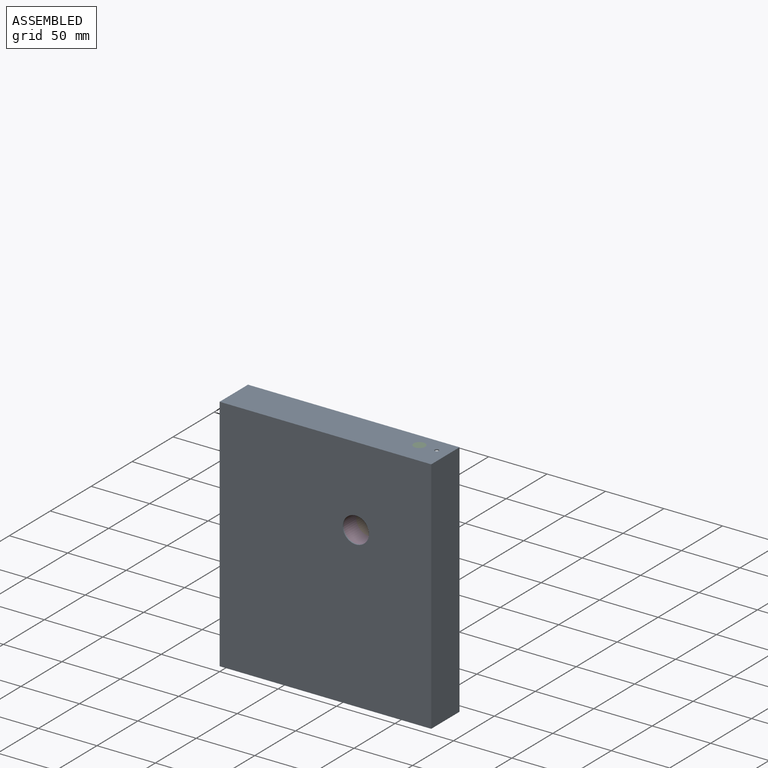
[diagram: assembled view]
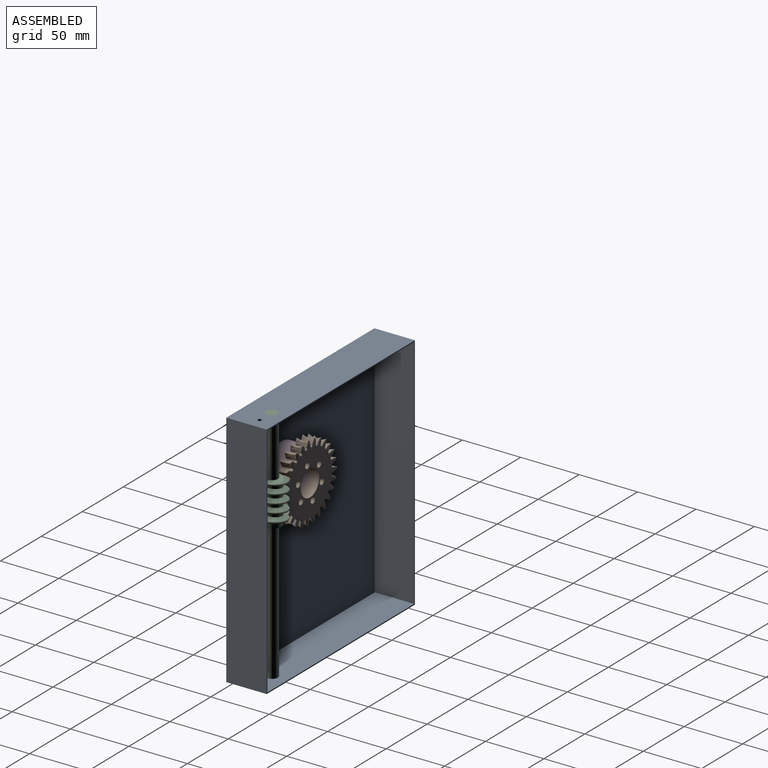
[diagram: assembled view, second angle]
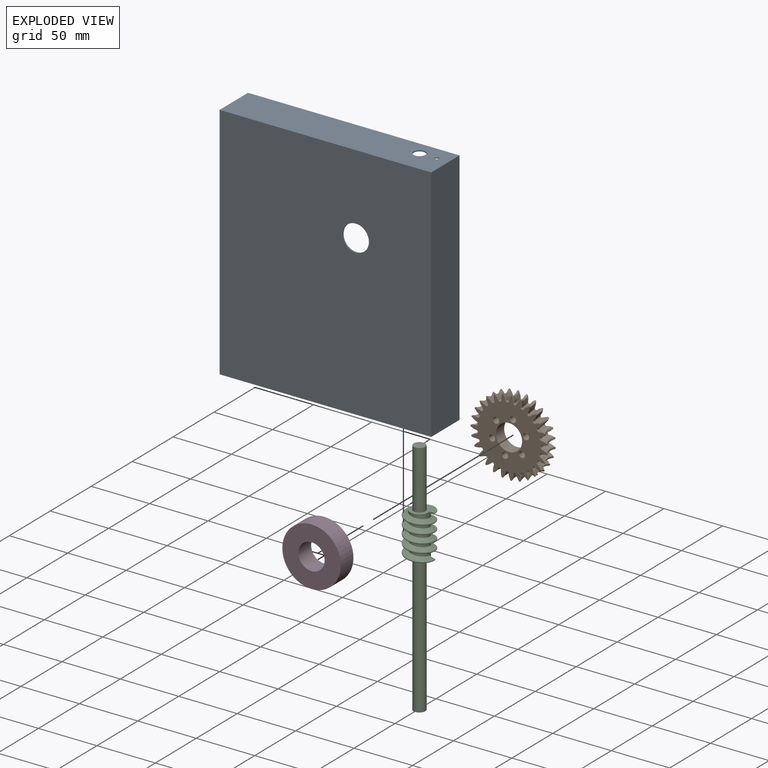
[diagram: exploded view]
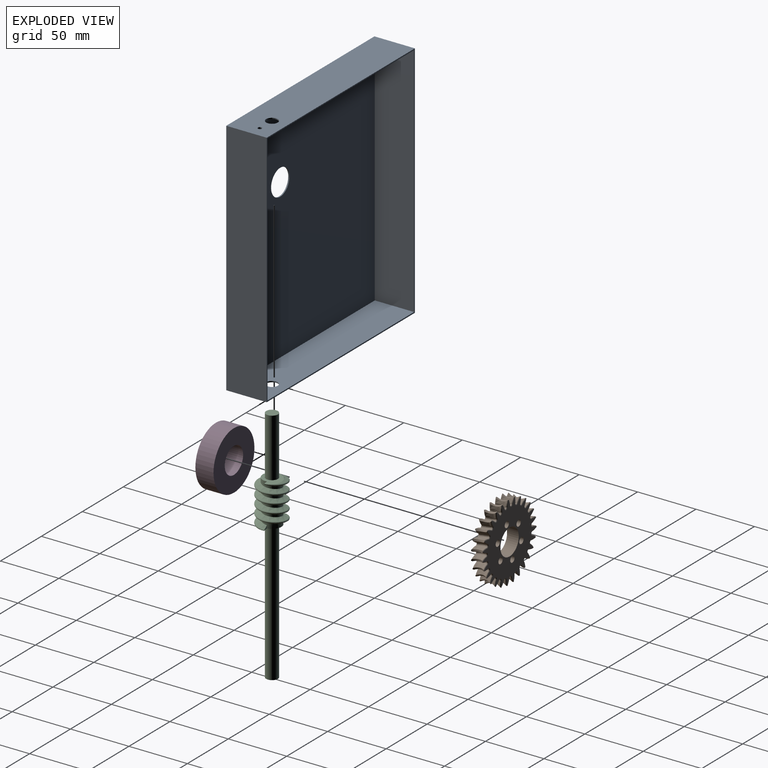
[diagram: exploded view, second angle]
ASSEMBLY  parts=4 mates=3
PART A: 15 faces, bbox 181x34.6x204.5 mm
  f0: cylinder r=11.2mm len=22.4mm, axis (0,1,0), area 70.4mm2, adj f1,f2
  f1: plane 204.5x181mm, normal (0,-1,0), area 36620.4mm2, adj f0,f7,f8,f9,f10
  f2: plane 202.5x179mm, normal (0,1,0), area 35853.4mm2, adj f0,f3,f4,f5,f6
  f3: plane 202.5x33.6mm, normal (1,0,0), area 6804mm2, adj f2,f4,f6,f11
  f4: plane 179x33.6mm, normal (0,0,1), area 5935.9mm2, adj f2,f3,f5,f11,f13
  f5: plane 202.5x33.6mm, normal (-1,0,0), area 6804mm2, adj f2,f4,f6,f11
  f6: plane 179x33.6mm, normal (0,0,-1), area 5927mm2, adj f2,f3,f5,f11,f12,f14
  f7: plane 181x34.6mm, normal (0,0,-1), area 6184.1mm2, adj f1,f8,f10,f11,f13
  f8: plane 204.5x34.6mm, normal (1,0,0), area 7075.7mm2, adj f1,f7,f9,f11
  f9: plane 181x34.6mm, normal (0,0,1), area 6175.2mm2, adj f1,f8,f10,f11,f12,f14
  f10: plane 204.5x34.6mm, normal (-1,0,0), area 7075.7mm2, adj f1,f7,f9,f11
  f11: plane 204.5x181mm, normal (0,1,0), area 767mm2, adj f3,f4,f5,f6,f7,f8,f9,f10
  f12: cylinder r=5mm len=10mm, axis (0,0,-1), area 31.4mm2, adj f6,f9
  f13: cylinder r=5mm len=10mm, axis (0,0,-1), area 31.4mm2, adj f4,f7
  f14: cylinder r=1.68mm len=3.35mm, axis (0,0,-1), area 10.5mm2, adj f6,f9
PART B: 387 faces, bbox 71x23.7x71.1 mm
  f0: torus R=39.39mm, axis (0,1,0), area 17mm2, adj f38,f39,f167,f168,f277,f278,f379,f381
  f1: torus R=39.39mm, axis (0,1,0), area 17mm2, adj f161,f162,f169,f170,f270,f272,f384,f386
  f2: torus R=39.39mm, axis (0,1,0), area 17mm2, adj f156,f157,f163,f164,f262,f264,f376,f378
  f3: torus R=39.39mm, axis (0,1,0), area 17mm2, adj f151,f152,f158,f159,f254,f256,f368,f370
  f4: torus R=39.39mm, axis (0,1,0), area 17mm2, adj f146,f147,f153,f154,f246,f248,f360,f362
  f5: torus R=39.39mm, axis (0,1,0), area 17mm2, adj f141,f142,f148,f149,f238,f240,f352,f354
  f6: torus R=39.39mm, axis (0,1,0), area 17mm2, adj f136,f137,f143,f144,f230,f232,f344,f346
  f7: torus R=39.39mm, axis (0,1,0), area 17mm2, adj f131,f132,f138,f139,f222,f224,f336,f338
  f8: torus R=39.39mm, axis (0,1,0), area 17mm2, adj f126,f127,f133,f134,f214,f216,f328,f330
  f9: torus R=39.39mm, axis (0,1,0), area 17mm2, adj f121,f122,f128,f129,f206,f208,f320,f322
  f10: torus R=39.39mm, axis (0,1,0), area 17mm2, adj f116,f117,f123,f124,f198,f200,f312,f314
  f11: torus R=39.39mm, axis (0,1,0), area 17mm2, adj f111,f112,f118,f119,f190,f192,f304,f306
  f12: torus R=39.39mm, axis (0,1,0), area 17mm2, adj f106,f107,f113,f114,f182,f184,f296,f298
  f13: torus R=39.39mm, axis (0,1,0), area 17mm2, adj f101,f102,f108,f109,f174,f176,f288,f290
  f14: torus R=39.39mm, axis (0,1,0), area 17mm2, adj f96,f97,f103,f104,f173,f175,f280,f282
  f15: torus R=39.39mm, axis (0,1,0), area 17mm2, adj f91,f92,f98,f99,f181,f183,f283,f285
  f16: torus R=39.39mm, axis (0,1,0), area 17mm2, adj f86,f87,f93,f94,f189,f191,f291,f293
  f17: torus R=39.39mm, axis (0,1,0), area 17mm2, adj f81,f82,f88,f89,f197,f199,f299,f301
  f18: torus R=39.39mm, axis (0,1,0), area 17mm2, adj f76,f77,f83,f84,f205,f207,f307,f309
  f19: torus R=39.39mm, axis (0,1,0), area 17mm2, adj f71,f72,f78,f79,f213,f215,f315,f317
  f20: torus R=39.39mm, axis (0,1,0), area 17mm2, adj f66,f67,f73,f74,f221,f223,f323,f325
  f21: torus R=39.39mm, axis (0,1,0), area 17mm2, adj f61,f62,f68,f69,f229,f231,f331,f333
  f22: torus R=39.39mm, axis (0,1,0), area 17mm2, adj f56,f57,f63,f64,f237,f239,f339,f341
  f23: torus R=39.39mm, axis (0,1,0), area 17mm2, adj f51,f52,f58,f59,f245,f247,f347,f349
  f24: torus R=39.39mm, axis (0,1,0), area 17mm2, adj f46,f47,f53,f54,f253,f255,f355,f357
  f25: torus R=39.39mm, axis (0,1,0), area 17mm2, adj f41,f42,f48,f49,f261,f263,f363,f365
  f26: plane 65.7x65.65mm, normal (0,1,0), area 2068.9mm2, adj f27,f29,f30,f31,f32,f33,f34,f279
  f27: cylinder r=11.2mm len=22.4mm, axis (0,-1,0), area 703.7mm2, adj f26,f28
  f28: plane 65.7x65.65mm, normal (0,-1,0), area 2068.9mm2, adj f27,f29,f30,f31,f32,f33,f34,f171
  f29: cylinder r=2.6mm len=10mm, axis (0,-1,0), area 163.4mm2, adj f26,f28
  f30: cylinder r=2.6mm len=10mm, axis (0,-1,0), area 163.4mm2, adj f26,f28
  f31: cylinder r=2.6mm len=10mm, axis (0,-1,0), area 163.4mm2, adj f26,f28
  f32: cylinder r=2.6mm len=10mm, axis (0,-1,0), area 163.4mm2, adj f26,f28
  f33: cylinder r=2.6mm len=10mm, axis (0,-1,0), area 163.4mm2, adj f26,f28
  f34: cylinder r=2.6mm len=10mm, axis (0,-1,0), area 163.4mm2, adj f26,f28
  f35: torus R=39.39mm, axis (0,1,0), area 17mm2, adj f36,f37,f43,f44,f269,f271,f371,f373
  f36: bspline ~20.48x7.56mm, area 36.8mm2, adj f35,f37,f40,f273,f373
  f37: bspline ~14.08x4.39mm, area 0.2mm2, adj f35,f36,f271
  f38: bspline ~7.04x3.91mm, area 0.2mm2, adj f0,f39,f379
  f39: bspline ~20.48x8.33mm, area 36.8mm2, adj f0,f38,f40,f277,f377
  f40: bspline ~23.71x8.45mm, area 32.1mm2, adj f36,f39,f275,f375
  f41: bspline ~20.48x6.95mm, area 36.8mm2, adj f25,f42,f45,f265,f365
  f42: bspline ~14.08x4.41mm, area 0.2mm2, adj f25,f41,f263
  f43: bspline ~7.04x3.48mm, area 0.2mm2, adj f35,f44,f371
  f44: bspline ~20.48x8.44mm, area 36.8mm2, adj f35,f43,f45,f269,f369
  f45: bspline ~23.71x8.67mm, area 32.1mm2, adj f41,f44,f267,f367
  f46: bspline ~20.48x7.56mm, area 36.8mm2, adj f24,f47,f50,f257,f357
  f47: bspline ~14.08x4.21mm, area 0.2mm2, adj f24,f46,f255
  f48: bspline ~7.04x3.48mm, area 0.2mm2, adj f25,f49,f363
  f49: bspline ~20.48x8.1mm, area 36.8mm2, adj f25,f48,f50,f261,f361
  f50: bspline ~23.71x8.43mm, area 32.1mm2, adj f46,f49,f259,f359
  f51: bspline ~20.48x8.23mm, area 36.8mm2, adj f23,f52,f55,f249,f349
  f52: bspline ~14.08x4.38mm, area 0.2mm2, adj f23,f51,f247
  f53: bspline ~7.04x3.94mm, area 0.2mm2, adj f24,f54,f355
  f54: bspline ~20.48x7.33mm, area 36.8mm2, adj f24,f53,f55,f253,f353
  f55: bspline ~23.71x8.53mm, area 32.1mm2, adj f51,f54,f251,f351
  f56: bspline ~20.48x8.46mm, area 36.8mm2, adj f22,f57,f60,f241,f341
  f57: bspline ~14.08x4.5mm, area 0.2mm2, adj f22,f56,f239
  f58: bspline ~7.04x4.21mm, area 0.2mm2, adj f23,f59,f347
  f59: bspline ~20.48x7.14mm, area 36.8mm2, adj f23,f58,f60,f245,f345
  f60: bspline ~23.71x8.66mm, area 32.1mm2, adj f56,f59,f243,f343
  f61: bspline ~20.48x8.23mm, area 36.8mm2, adj f21,f62,f65,f233,f333
  f62: bspline ~14.08x4.38mm, area 0.2mm2, adj f21,f61,f231
  f63: bspline ~7.04x4.25mm, area 0.2mm2, adj f22,f64,f339
  f64: bspline ~20.48x7.65mm, area 36.8mm2, adj f22,f63,f65,f237,f337
  f65: bspline ~23.71x8.32mm, area 32.1mm2, adj f61,f64,f235,f335
  f66: bspline ~20.48x7.75mm, area 36.8mm2, adj f20,f67,f70,f225,f325
  f67: bspline ~14.08x4.22mm, area 0.2mm2, adj f20,f66,f223
  f68: bspline ~14.08x4.23mm, area 0.2mm2, adj f21,f69,f331
  f69: bspline ~20.48x7.94mm, area 36.8mm2, adj f21,f68,f70,f229,f329
  f70: bspline ~23.71x7.99mm, area 32.1mm2, adj f66,f69,f227,f327
  f71: bspline ~20.48x7.45mm, area 36.8mm2, adj f19,f72,f75,f217,f317
  f72: bspline ~14.08x4.42mm, area 0.2mm2, adj f19,f71,f215
  f73: bspline ~7.04x3.82mm, area 0.2mm2, adj f20,f74,f323
  f74: bspline ~20.48x8.4mm, area 36.8mm2, adj f20,f73,f75,f221,f321
  f75: bspline ~23.71x8.55mm, area 32.1mm2, adj f71,f74,f219,f319
  f76: bspline ~20.48x6.79mm, area 36.8mm2, adj f18,f77,f80,f209,f309
  f77: bspline ~14.08x4.38mm, area 0.2mm2, adj f18,f76,f207
  f78: bspline ~7.04x3.34mm, area 0.2mm2, adj f19,f79,f315
  f79: bspline ~20.48x8.4mm, area 36.8mm2, adj f19,f78,f80,f213,f313
  f80: bspline ~23.71x8.65mm, area 32.1mm2, adj f76,f79,f211,f311
  f81: bspline ~20.48x7.77mm, area 36.8mm2, adj f17,f82,f85,f201,f301
  f82: bspline ~14.08x4.14mm, area 0.2mm2, adj f17,f81,f199
  f83: bspline ~7.04x3.61mm, area 0.2mm2, adj f18,f84,f307
  f84: bspline ~20.48x7.95mm, area 36.8mm2, adj f18,f83,f85,f205,f305
  f85: bspline ~23.71x8.29mm, area 32.1mm2, adj f81,f84,f203,f303
  f86: bspline ~20.48x8.33mm, area 36.8mm2, adj f16,f87,f90,f193,f293
  f87: bspline ~14.08x4.43mm, area 0.2mm2, adj f16,f86,f191
  f88: bspline ~7.04x4.03mm, area 0.2mm2, adj f17,f89,f299
  f89: bspline ~20.48x7.07mm, area 36.8mm2, adj f17,f88,f90,f197,f297
  f90: bspline ~23.71x8.61mm, area 32.1mm2, adj f86,f89,f195,f295
  f91: bspline ~20.48x8.44mm, area 36.8mm2, adj f15,f92,f95,f185,f285
  f92: bspline ~14.08x4.49mm, area 0.2mm2, adj f15,f91,f183
  f93: bspline ~7.04x4.24mm, area 0.2mm2, adj f16,f94,f291
  f94: bspline ~20.48x7.31mm, area 36.8mm2, adj f16,f93,f95,f189,f289
  f95: bspline ~23.71x8.62mm, area 32.1mm2, adj f91,f94,f187,f287
  f96: bspline ~20.48x8.1mm, area 36.8mm2, adj f14,f97,f100,f177,f280
  f97: bspline ~14.08x4.31mm, area 0.2mm2, adj f14,f96,f175
  f98: bspline ~7.04x4.22mm, area 0.2mm2, adj f15,f99,f283
  f99: bspline ~20.48x7.71mm, area 36.8mm2, adj f15,f98,f100,f181,f281
  f100: bspline ~23.71x8.17mm, area 32.1mm2, adj f96,f99,f179,f279
  f101: bspline ~20.48x7.71mm, area 36.8mm2, adj f13,f102,f105,f172,f288
  f102: bspline ~14.08x4.29mm, area 0.2mm2, adj f13,f101,f174
  f103: bspline ~7.04x4.05mm, area 0.2mm2, adj f14,f104,f282
  f104: bspline ~20.48x8.1mm, area 36.8mm2, adj f14,f103,f105,f173,f284
  f105: bspline ~23.71x8.17mm, area 32.1mm2, adj f101,f104,f171,f286
  f106: bspline ~20.48x7.31mm, area 36.8mm2, adj f12,f107,f110,f180,f296
  f107: bspline ~14.08x4.43mm, area 0.2mm2, adj f12,f106,f182
  f108: bspline ~7.04x3.72mm, area 0.2mm2, adj f13,f109,f290
  f109: bspline ~20.48x8.44mm, area 36.8mm2, adj f13,f108,f110,f176,f292
  f110: bspline ~23.71x8.62mm, area 32.1mm2, adj f106,f109,f178,f294
  f111: bspline ~20.48x7.07mm, area 36.8mm2, adj f11,f112,f115,f188,f304
  f112: bspline ~14.08x4.34mm, area 0.2mm2, adj f11,f111,f190
  f113: bspline ~14.08x4.43mm, area 0.2mm2, adj f12,f114,f298
  f114: bspline ~20.48x8.33mm, area 36.8mm2, adj f12,f113,f115,f184,f300
  f115: bspline ~23.71x8.61mm, area 32.1mm2, adj f111,f114,f186,f302
  f116: bspline ~20.48x7.95mm, area 36.8mm2, adj f10,f117,f120,f196,f312
  f117: bspline ~14.08x4.23mm, area 0.2mm2, adj f10,f116,f198
  f118: bspline ~7.04x3.73mm, area 0.2mm2, adj f11,f119,f306
  f119: bspline ~20.48x7.77mm, area 36.8mm2, adj f11,f118,f120,f192,f308
  f120: bspline ~23.71x8.29mm, area 32.1mm2, adj f116,f119,f194,f310
  f121: bspline ~20.48x8.4mm, area 36.8mm2, adj f9,f122,f125,f204,f320
  f122: bspline ~14.08x4.47mm, area 0.2mm2, adj f9,f121,f206
  f123: bspline ~7.04x4.1mm, area 0.2mm2, adj f10,f124,f314
  f124: bspline ~20.48x6.79mm, area 36.8mm2, adj f10,f123,f125,f200,f316
  f125: bspline ~23.71x8.65mm, area 32.1mm2, adj f121,f124,f202,f318
  f126: bspline ~20.48x8.4mm, area 36.8mm2, adj f8,f127,f130,f212,f328
  f127: bspline ~14.08x4.47mm, area 0.2mm2, adj f8,f126,f214
  f128: bspline ~7.04x4.26mm, area 0.2mm2, adj f9,f129,f322
  f129: bspline ~20.48x7.45mm, area 36.8mm2, adj f9,f128,f130,f208,f324
  f130: bspline ~23.71x8.55mm, area 32.1mm2, adj f126,f129,f210,f326
  f131: bspline ~20.48x7.94mm, area 36.8mm2, adj f7,f132,f135,f220,f336
  f132: bspline ~14.08x4.23mm, area 0.2mm2, adj f7,f131,f222
  f133: bspline ~14.08x4.22mm, area 0.2mm2, adj f8,f134,f330
  f134: bspline ~20.48x7.75mm, area 36.8mm2, adj f8,f133,f135,f216,f332
  f135: bspline ~23.71x7.99mm, area 32.1mm2, adj f131,f134,f218,f334
  f136: bspline ~20.48x7.65mm, area 36.8mm2, adj f6,f137,f140,f228,f344
  f137: bspline ~14.08x4.35mm, area 0.2mm2, adj f6,f136,f230
  f138: bspline ~14.08x4.38mm, area 0.2mm2, adj f7,f139,f338
  f139: bspline ~20.48x8.23mm, area 36.8mm2, adj f7,f138,f140,f224,f340
  f140: bspline ~23.71x8.32mm, area 32.1mm2, adj f136,f139,f226,f342
  f141: bspline ~20.48x7.14mm, area 36.8mm2, adj f5,f142,f145,f236,f352
  f142: bspline ~14.08x4.43mm, area 0.2mm2, adj f5,f141,f238
  f143: bspline ~7.04x3.6mm, area 0.2mm2, adj f6,f144,f346
  f144: bspline ~20.48x8.46mm, area 36.8mm2, adj f6,f143,f145,f232,f348
  f145: bspline ~23.71x8.66mm, area 32.1mm2, adj f141,f144,f234,f350
  f146: bspline ~20.48x7.33mm, area 36.8mm2, adj f4,f147,f150,f244,f360
  f147: bspline ~14.08x4.28mm, area 0.2mm2, adj f4,f146,f246
  f148: bspline ~7.04x3.34mm, area 0.2mm2, adj f5,f149,f354
  f149: bspline ~20.48x8.23mm, area 36.8mm2, adj f5,f148,f150,f240,f356
  f150: bspline ~23.71x8.53mm, area 32.1mm2, adj f146,f149,f242,f358
  f151: bspline ~20.48x8.1mm, area 36.8mm2, adj f3,f152,f155,f252,f368
  f152: bspline ~14.08x4.31mm, area 0.2mm2, adj f3,f151,f254
  f153: bspline ~7.04x3.84mm, area 0.2mm2, adj f4,f154,f362
  f154: bspline ~20.48x7.56mm, area 36.8mm2, adj f4,f153,f155,f248,f364
  f155: bspline ~23.71x8.43mm, area 32.1mm2, adj f151,f154,f250,f366
  f156: bspline ~20.48x8.44mm, area 36.8mm2, adj f2,f157,f160,f260,f376
  f157: bspline ~14.08x4.49mm, area 0.2mm2, adj f2,f156,f262
  f158: bspline ~7.04x4.16mm, area 0.2mm2, adj f3,f159,f370
  f159: bspline ~20.48x6.95mm, area 36.8mm2, adj f3,f158,f160,f256,f372
  f160: bspline ~23.71x8.67mm, area 32.1mm2, adj f156,f159,f258,f374
  f161: bspline ~20.48x8.33mm, area 36.8mm2, adj f1,f162,f165,f268,f384
  f162: bspline ~14.08x4.43mm, area 0.2mm2, adj f1,f161,f270
  f163: bspline ~14.08x4.39mm, area 0.2mm2, adj f2,f164,f378
  f164: bspline ~20.48x7.56mm, area 36.8mm2, adj f2,f163,f165,f264,f380
  f165: bspline ~23.71x8.45mm, area 32.1mm2, adj f161,f164,f266,f382
  f166: bspline ~23.71x7.78mm, area 32.1mm2, adj f168,f169,f274,f383
  f167: bspline ~14.08x4.13mm, area 0.2mm2, adj f0,f168,f278
  f168: bspline ~20.48x7.76mm, area 36.8mm2, adj f0,f166,f167,f276,f381
  f169: bspline ~20.48x7.76mm, area 36.8mm2, adj f1,f166,f170,f272,f385
  f170: bspline ~7.04x4.13mm, area 0.2mm2, adj f1,f169,f386
  f171: bspline ~3.78x2.09mm, area 5.4mm2, adj f28,f105,f172,f173
  f172: bspline ~5.32x3.31mm, area 5.4mm2, adj f28,f101,f171,f174
  f173: bspline ~5.73x2.64mm, area 5.6mm2, adj f14,f28,f104,f171,f175
  f174: bspline ~1.73x1.61mm, area 0.8mm2, adj f13,f28,f102,f172,f176
  f175: bspline ~1.64x1.44mm, area 0.8mm2, adj f14,f28,f97,f173,f177
  f176: bspline ~5.97x1.48mm, area 5.6mm2, adj f13,f28,f109,f174,f178
  f177: bspline ~5.57x2.19mm, area 5.4mm2, adj f28,f96,f175,f179
  f178: bspline ~3.61x2.5mm, area 5.4mm2, adj f28,f110,f176,f180
  f179: bspline ~3.79x1.99mm, area 5.4mm2, adj f28,f100,f177,f181
  f180: bspline ~4.81x4.28mm, area 5.4mm2, adj f28,f106,f178,f182
  f181: bspline ~5.31x3.79mm, area 5.6mm2, adj f15,f28,f99,f179,f183
  f182: bspline ~1.72x1.7mm, area 0.8mm2, adj f12,f28,f107,f180,f184
  f183: bspline ~1.46x1.19mm, area 0.8mm2, adj f15,f28,f92,f181,f185
  f184: bspline ~5.93x1.54mm, area 5.6mm2, adj f12,f28,f114,f182,f186
  f185: bspline ~5.68x1.25mm, area 5.4mm2, adj f28,f91,f183,f187
  f186: bspline ~3.38x2.91mm, area 5.4mm2, adj f28,f115,f184,f188
  f187: bspline ~3.67x2.41mm, area 5.4mm2, adj f28,f95,f185,f189
  f188: bspline ~5.01x4.04mm, area 5.4mm2, adj f28,f111,f186,f190
  f189: bspline ~4.74x4.6mm, area 5.6mm2, adj f16,f28,f94,f187,f191
  f190: bspline ~1.69x1.62mm, area 0.8mm2, adj f11,f28,f112,f188,f192
  f191: bspline ~1.47x1.25mm, area 0.8mm2, adj f16,f28,f87,f189,f193
  f192: bspline ~5.76x2.8mm, area 5.6mm2, adj f11,f28,f119,f190,f194
  f193: bspline ~5.63x2.2mm, area 5.4mm2, adj f28,f86,f191,f195
  f194: bspline ~3.25x3.07mm, area 5.4mm2, adj f28,f120,f192,f196
  f195: bspline ~3.46x2.8mm, area 5.4mm2, adj f28,f90,f193,f197
  f196: bspline ~5.48x3.05mm, area 5.4mm2, adj f28,f116,f194,f198
  f197: bspline ~5.43x3.64mm, area 5.6mm2, adj f17,f28,f89,f195,f199
  f198: bspline ~1.6x1.44mm, area 0.8mm2, adj f10,f28,f117,f196,f200
  f199: bspline ~1.63x1.49mm, area 0.8mm2, adj f17,f28,f82,f197,f201
  f200: bspline ~5.29x3.9mm, area 5.6mm2, adj f10,f28,f124,f198,f202
  f201: bspline ~4.47x2.95mm, area 5.4mm2, adj f28,f81,f199,f203
  f202: bspline ~3.53x2.71mm, area 5.4mm2, adj f28,f125,f200,f204
  f203: bspline ~3.17x3.15mm, area 5.4mm2, adj f28,f85,f201,f205
  f204: bspline ~5.65x1.89mm, area 5.4mm2, adj f28,f121,f202,f206
  f205: bspline ~5.84x2.49mm, area 5.6mm2, adj f18,f28,f84,f203,f207
  f206: bspline ~1.41x1.17mm, area 0.8mm2, adj f9,f28,f122,f204,f208
  f207: bspline ~1.7x1.66mm, area 0.8mm2, adj f18,f28,f77,f205,f209
  f208: bspline ~4.8x4.53mm, area 5.6mm2, adj f9,f28,f129,f206,f210
  f209: bspline ~4.85x4.25mm, area 5.4mm2, adj f28,f76,f207,f211
  f210: bspline ~3.71x2.31mm, area 5.4mm2, adj f28,f130,f208,f212
  f211: bspline ~3.44x2.81mm, area 5.4mm2, adj f28,f80,f209,f213
  f212: bspline ~5.68x1.44mm, area 5.4mm2, adj f28,f126,f210,f214
  f213: bspline ~5.96x1.26mm, area 5.6mm2, adj f19,f28,f79,f211,f215
  f214: bspline ~1.52x1.25mm, area 0.8mm2, adj f8,f28,f127,f212,f216
  f215: bspline ~1.73x1.68mm, area 0.8mm2, adj f19,f28,f72,f213,f217
  f216: bspline ~5.44x3.52mm, area 5.6mm2, adj f8,f28,f134,f214,f218
  f217: bspline ~4.97x4.05mm, area 5.4mm2, adj f28,f71,f215,f219
  f218: bspline ~3.81x1.91mm, area 5.4mm2, adj f28,f135,f216,f220
  f219: bspline ~3.66x2.39mm, area 5.4mm2, adj f28,f75,f217,f221
  f220: bspline ~5.52x2.47mm, area 5.4mm2, adj f28,f131,f218,f222
  f221: bspline ~5.93x1.74mm, area 5.6mm2, adj f20,f28,f74,f219,f223
  f222: bspline ~1.67x1.49mm, area 0.8mm2, adj f7,f28,f132,f220,f224
  f223: bspline ~1.71x1.57mm, area 0.8mm2, adj f20,f28,f67,f221,f225
  f224: bspline ~5.79x2.33mm, area 5.6mm2, adj f7,f28,f139,f222,f226
  f225: bspline ~5.41x3.04mm, area 5.4mm2, adj f28,f66,f223,f227
  f226: bspline ~3.74x2.17mm, area 5.4mm2, adj f28,f140,f224,f228
  f227: bspline ~3.8x2.02mm, area 5.4mm2, adj f28,f70,f225,f229
  f228: bspline ~5.22x3.57mm, area 5.4mm2, adj f28,f136,f226,f230
  f229: bspline ~5.65x2.94mm, area 5.6mm2, adj f21,f28,f69,f227,f231
  f230: bspline ~1.73x1.64mm, area 0.8mm2, adj f6,f28,f137,f228,f232
  f231: bspline ~1.6x1.38mm, area 0.8mm2, adj f21,f28,f62,f229,f233
  f232: bspline ~5.99x1.25mm, area 5.6mm2, adj f6,f28,f144,f230,f234
  f233: bspline ~5.62x1.92mm, area 5.4mm2, adj f28,f61,f231,f235
  f234: bspline ~3.56x2.61mm, area 5.4mm2, adj f28,f145,f232,f236
  f235: bspline ~3.77x2.09mm, area 5.4mm2, adj f28,f65,f233,f237
  f236: bspline ~4.64x4.48mm, area 5.4mm2, adj f28,f141,f234,f238
  f237: bspline ~5.16x4.05mm, area 5.6mm2, adj f22,f28,f64,f235,f239
  f238: bspline ~1.71x1.7mm, area 0.8mm2, adj f5,f28,f142,f236,f240
  f239: bspline ~1.41x1.11mm, area 0.8mm2, adj f22,f28,f57,f237,f241
  f240: bspline ~5.92x1.86mm, area 5.6mm2, adj f5,f28,f149,f238,f242
  f241: bspline ~5.66x1.3mm, area 5.4mm2, adj f28,f56,f239,f243
  f242: bspline ~3.31x3mm, area 5.4mm2, adj f28,f150,f240,f244
  f243: bspline ~3.63x2.51mm, area 5.4mm2, adj f28,f60,f241,f245
  f244: bspline ~5.15x3.81mm, area 5.4mm2, adj f28,f146,f242,f246
  f245: bspline ~4.94x4.38mm, area 5.6mm2, adj f23,f28,f59,f243,f247
  f246: bspline ~1.68x1.58mm, area 0.8mm2, adj f4,f28,f147,f244,f248
  f247: bspline ~1.52x1.31mm, area 0.8mm2, adj f23,f28,f52,f245,f249
  f248: bspline ~5.67x3.09mm, area 5.6mm2, adj f4,f28,f154,f246,f250
  f249: bspline ~5.6x2.49mm, area 5.4mm2, adj f28,f51,f247,f251
  f250: bspline ~3.33x2.98mm, area 5.4mm2, adj f28,f155,f248,f252
  f251: bspline ~3.4x2.9mm, area 5.4mm2, adj f28,f55,f249,f253
  f252: bspline ~5.55x2.77mm, area 5.4mm2, adj f28,f151,f250,f254
  f253: bspline ~5.56x3.37mm, area 5.6mm2, adj f24,f28,f54,f251,f255
  f254: bspline ~1.56x1.38mm, area 0.8mm2, adj f3,f28,f152,f252,f256
  f255: bspline ~1.66x1.54mm, area 0.8mm2, adj f24,f28,f47,f253,f257
  f256: bspline ~5.12x4.15mm, area 5.6mm2, adj f3,f28,f159,f254,f258
  f257: bspline ~5.28x3.57mm, area 5.4mm2, adj f28,f46,f255,f259
  f258: bspline ~3.58x2.61mm, area 5.4mm2, adj f28,f160,f256,f260
  f259: bspline ~3.23x3.09mm, area 5.4mm2, adj f28,f50,f257,f261
  f260: bspline ~5.64x1.59mm, area 5.4mm2, adj f28,f156,f258,f262
  f261: bspline ~5.89x2.18mm, area 5.6mm2, adj f25,f28,f49,f259,f263
  f262: bspline ~1.37x1.1mm, area 0.8mm2, adj f2,f28,f157,f260,f264
  f263: bspline ~1.71x1.68mm, area 0.8mm2, adj f25,f28,f42,f261,f265
  f264: bspline ~4.99x4.3mm, area 5.6mm2, adj f2,f28,f164,f262,f266
  f265: bspline ~4.68x4.46mm, area 5.4mm2, adj f28,f41,f263,f267
  f266: bspline ~3.74x2.2mm, area 5.4mm2, adj f28,f165,f264,f268
  f267: bspline ~3.5x2.71mm, area 5.4mm2, adj f28,f45,f265,f269
  f268: bspline ~5.66x1.66mm, area 5.4mm2, adj f28,f161,f266,f270
  f269: bspline ~5.99x1.07mm, area 5.6mm2, adj f28,f35,f44,f267,f271
  f270: bspline ~1.56x1.32mm, area 0.8mm2, adj f1,f28,f162,f268,f272
  f271: bspline ~1.74x1.66mm, area 0.8mm2, adj f28,f35,f37,f269,f273
  f272: bspline ~5.55x3.24mm, area 5.6mm2, adj f1,f28,f169,f270,f274
  f273: bspline ~5.1x3.82mm, area 5.4mm2, adj f28,f36,f271,f275
  f274: bspline ~3.81x1.94mm, area 5.4mm2, adj f28,f166,f272,f276
  f275: bspline ~3.71x2.28mm, area 5.4mm2, adj f28,f40,f273,f277
  f276: bspline ~5.47x2.76mm, area 5.4mm2, adj f28,f168,f274,f278
  f277: bspline ~5.87x2.02mm, area 5.6mm2, adj f0,f28,f39,f275,f278
  f278: bspline ~1.7x1.53mm, area 0.8mm2, adj f0,f28,f167,f276,f277
  f279: bspline ~3.78x2.09mm, area 5.4mm2, adj f26,f100,f280,f281
  f280: bspline ~6.8x3.16mm, area 5.6mm2, adj f14,f26,f96,f279,f282
  f281: bspline ~4.51x2.78mm, area 5.4mm2, adj f26,f99,f279,f283
  f282: bspline ~1.64x1.44mm, area 0.8mm2, adj f14,f26,f103,f280,f284
  f283: bspline ~1.73x1.61mm, area 0.8mm2, adj f15,f26,f98,f281,f285
  f284: bspline ~5.57x2.19mm, area 5.4mm2, adj f26,f104,f282,f286
  f285: bspline ~7.12x1.74mm, area 5.6mm2, adj f15,f26,f91,f283,f287
  f286: bspline ~3.79x1.99mm, area 5.4mm2, adj f26,f105,f284,f288
  f287: bspline ~3.61x2.5mm, area 5.4mm2, adj f26,f95,f285,f289
  f288: bspline ~6.24x4.54mm, area 5.6mm2, adj f13,f26,f101,f286,f290
  f289: bspline ~4.81x4.28mm, area 5.4mm2, adj f26,f94,f287,f291
  f290: bspline ~1.46x1.18mm, area 0.8mm2, adj f13,f26,f108,f288,f292
  f291: bspline ~1.72x1.7mm, area 0.8mm2, adj f16,f26,f93,f289,f293
  f292: bspline ~5.68x1.25mm, area 5.4mm2, adj f26,f109,f290,f294
  f293: bspline ~7.12x1.58mm, area 5.6mm2, adj f16,f26,f86,f291,f295
  f294: bspline ~3.67x2.41mm, area 5.4mm2, adj f26,f110,f292,f296
  f295: bspline ~3.38x2.91mm, area 5.4mm2, adj f26,f90,f293,f297
  f296: bspline ~5.68x5.34mm, area 5.6mm2, adj f12,f26,f106,f294,f298
  f297: bspline ~5.01x4.04mm, area 5.4mm2, adj f26,f89,f295,f299
  f298: bspline ~1.47x1.25mm, area 0.8mm2, adj f12,f26,f113,f296,f300
  f299: bspline ~1.69x1.62mm, area 0.8mm2, adj f17,f26,f88,f297,f301
  f300: bspline ~5.63x2.2mm, area 5.4mm2, adj f26,f114,f298,f302
  f301: bspline ~6.91x3.11mm, area 5.6mm2, adj f17,f26,f81,f299,f303
  f302: bspline ~3.46x2.8mm, area 5.4mm2, adj f26,f115,f300,f304
  f303: bspline ~3.25x3.07mm, area 5.4mm2, adj f26,f85,f301,f305
  f304: bspline ~6.52x4.15mm, area 5.6mm2, adj f11,f26,f111,f302,f306
  f305: bspline ~4.54x2.73mm, area 5.4mm2, adj f26,f84,f303,f307
  f306: bspline ~1.63x1.49mm, area 0.8mm2, adj f11,f26,f118,f304,f308
  f307: bspline ~1.59x1.44mm, area 0.8mm2, adj f18,f26,f83,f305,f309
  f308: bspline ~4.47x2.95mm, area 5.4mm2, adj f26,f119,f306,f310
  f309: bspline ~6.34x4.47mm, area 5.6mm2, adj f18,f26,f76,f307,f311
  f310: bspline ~3.17x3.15mm, area 5.4mm2, adj f26,f120,f308,f312
  f311: bspline ~3.53x2.71mm, area 5.4mm2, adj f26,f80,f309,f313
  f312: bspline ~7x2.74mm, area 5.6mm2, adj f10,f26,f116,f310,f314
  f313: bspline ~5.65x1.89mm, area 5.4mm2, adj f26,f79,f311,f315
  f314: bspline ~1.7x1.66mm, area 0.8mm2, adj f10,f26,f123,f312,f316
  f315: bspline ~1.41x1.17mm, area 0.8mm2, adj f19,f26,f78,f313,f317
  f316: bspline ~4.85x4.25mm, area 5.4mm2, adj f26,f124,f314,f318
  f317: bspline ~5.59x5.42mm, area 5.6mm2, adj f19,f26,f71,f315,f319
  f318: bspline ~3.44x2.81mm, area 5.4mm2, adj f26,f125,f316,f320
  f319: bspline ~3.71x2.31mm, area 5.4mm2, adj f26,f75,f317,f321
  f320: bspline ~7.14x1.26mm, area 5.6mm2, adj f9,f26,f121,f318,f322
  f321: bspline ~5.68x1.44mm, area 5.4mm2, adj f26,f74,f319,f323
  f322: bspline ~1.73x1.68mm, area 0.8mm2, adj f9,f26,f128,f320,f324
  f323: bspline ~1.51x1.25mm, area 0.8mm2, adj f20,f26,f73,f321,f325
  f324: bspline ~4.25x3.39mm, area 5.4mm2, adj f26,f129,f322,f326
  f325: bspline ~6.41x4.22mm, area 5.6mm2, adj f20,f26,f66,f323,f327
  f326: bspline ~3.66x2.39mm, area 5.4mm2, adj f26,f130,f324,f328
  f327: bspline ~3.81x1.91mm, area 5.4mm2, adj f26,f70,f325,f329
  f328: bspline ~7.07x2.06mm, area 5.6mm2, adj f8,f26,f126,f326,f330
  f329: bspline ~5.52x2.47mm, area 5.4mm2, adj f26,f69,f327,f331
  f330: bspline ~1.71x1.57mm, area 0.8mm2, adj f8,f26,f133,f328,f332
  f331: bspline ~1.67x1.49mm, area 0.8mm2, adj f21,f26,f68,f329,f333
  f332: bspline ~5.41x3.04mm, area 5.4mm2, adj f26,f134,f330,f334
  f333: bspline ~6.89x2.78mm, area 5.6mm2, adj f21,f26,f61,f331,f335
  f334: bspline ~3.8x2.02mm, area 5.4mm2, adj f26,f135,f332,f336
  f335: bspline ~3.74x2.17mm, area 5.4mm2, adj f26,f65,f333,f337
  f336: bspline ~6.69x3.52mm, area 5.6mm2, adj f7,f26,f131,f334,f338
  f337: bspline ~4.44x2.99mm, area 5.4mm2, adj f26,f64,f335,f339
  f338: bspline ~1.6x1.38mm, area 0.8mm2, adj f7,f26,f138,f336,f340
  f339: bspline ~1.73x1.64mm, area 0.8mm2, adj f22,f26,f63,f337,f341
  f340: bspline ~5.62x1.92mm, area 5.4mm2, adj f26,f139,f338,f342
  f341: bspline ~7.15x1.44mm, area 5.6mm2, adj f22,f26,f56,f339,f343
  f342: bspline ~3.77x2.09mm, area 5.4mm2, adj f26,f140,f340,f344
  f343: bspline ~3.56x2.61mm, area 5.4mm2, adj f26,f60,f341,f345
  f344: bspline ~6.04x4.85mm, area 5.6mm2, adj f6,f26,f136,f342,f346
  f345: bspline ~4.64x4.48mm, area 5.4mm2, adj f26,f59,f343,f347
  f346: bspline ~1.41x1.11mm, area 0.8mm2, adj f6,f26,f143,f344,f348
  f347: bspline ~1.7x1.7mm, area 0.8mm2, adj f23,f26,f58,f345,f349
  f348: bspline ~4.72x1.3mm, area 5.4mm2, adj f26,f144,f346,f350
  f349: bspline ~7.1x1.98mm, area 5.6mm2, adj f23,f26,f51,f347,f351
  f350: bspline ~3.63x2.51mm, area 5.4mm2, adj f26,f145,f348,f352
  f351: bspline ~3.31x3mm, area 5.4mm2, adj f26,f55,f349,f353
  f352: bspline ~5.92x5.07mm, area 5.6mm2, adj f5,f26,f141,f350,f354
  f353: bspline ~5.15x3.81mm, area 5.4mm2, adj f26,f54,f351,f355
  f354: bspline ~1.51x1.31mm, area 0.8mm2, adj f5,f26,f148,f352,f356
  f355: bspline ~1.68x1.58mm, area 0.8mm2, adj f24,f26,f53,f353,f357
  f356: bspline ~5.6x2.49mm, area 5.4mm2, adj f26,f149,f354,f358
  f357: bspline ~6.81x3.47mm, area 5.6mm2, adj f24,f26,f46,f355,f359
  f358: bspline ~3.4x2.9mm, area 5.4mm2, adj f26,f150,f356,f360
  f359: bspline ~3.33x2.98mm, area 5.4mm2, adj f26,f50,f357,f361
  f360: bspline ~6.67x3.82mm, area 5.6mm2, adj f4,f26,f146,f358,f362
  f361: bspline ~5.55x2.77mm, area 5.4mm2, adj f26,f49,f359,f363
  f362: bspline ~1.65x1.54mm, area 0.8mm2, adj f4,f26,f153,f360,f364
  f363: bspline ~1.56x1.38mm, area 0.8mm2, adj f25,f26,f48,f361,f365
  f364: bspline ~5.28x3.57mm, area 5.4mm2, adj f26,f154,f362,f366
  f365: bspline ~6.14x4.78mm, area 5.6mm2, adj f25,f26,f41,f363,f367
  f366: bspline ~3.23x3.09mm, area 5.4mm2, adj f26,f155,f364,f368
  f367: bspline ~3.58x2.61mm, area 5.4mm2, adj f26,f45,f365,f369
  f368: bspline ~7.06x2.36mm, area 5.6mm2, adj f3,f26,f151,f366,f370
  f369: bspline ~5.64x1.59mm, area 5.4mm2, adj f26,f44,f367,f371
  f370: bspline ~1.7x1.68mm, area 0.8mm2, adj f3,f26,f158,f368,f372
  f371: bspline ~1.37x1.1mm, area 0.8mm2, adj f26,f35,f43,f369,f373
  f372: bspline ~4.68x4.46mm, area 5.4mm2, adj f26,f159,f370,f374
  f373: bspline ~5.83x5.15mm, area 5.6mm2, adj f26,f35,f36,f371,f375
  f374: bspline ~3.5x2.71mm, area 5.4mm2, adj f26,f160,f372,f376
  f375: bspline ~3.74x2.2mm, area 5.4mm2, adj f26,f40,f373,f377
  f376: bspline ~7.16x1.18mm, area 5.6mm2, adj f2,f26,f156,f374,f378
  f377: bspline ~4.73x1.44mm, area 5.4mm2, adj f26,f39,f375,f379
  f378: bspline ~1.73x1.66mm, area 0.8mm2, adj f2,f26,f163,f376,f380
  f379: bspline ~1.56x1.32mm, area 0.8mm2, adj f0,f26,f38,f377,f381
  f380: bspline ~5.1x3.82mm, area 5.4mm2, adj f26,f164,f378,f382
  f381: bspline ~6.56x3.88mm, area 5.6mm2, adj f0,f26,f168,f379,f383
  f382: bspline ~3.71x2.28mm, area 5.4mm2, adj f26,f165,f380,f384
  f383: bspline ~3.81x1.94mm, area 5.4mm2, adj f26,f166,f381,f385
  f384: bspline ~6.99x2.41mm, area 5.6mm2, adj f1,f26,f161,f382,f386
  f385: bspline ~5.47x2.76mm, area 5.4mm2, adj f26,f169,f383,f386
  f386: bspline ~1.69x1.53mm, area 0.8mm2, adj f1,f26,f170,f384,f385
PART C: 40 faces, bbox 27.7x31.7x206.6 mm
  f0: plane 0.32x0.1mm, normal (0,-1,0), area 0mm2, adj f1,f11,f12,f15
  f1: bspline ~37.1x11.38mm, area 108.7mm2, adj f0,f3,f12,f13,f14,f15,f16,f17
  f2: bspline ~36.35x11.38mm, area 106.4mm2, adj f3,f11,f12,f14,f15,f16,f17,f18
  f3: plane 1.2x0.1mm, normal (-0.97,0.26,0), area 0.1mm2, adj f1,f2,f12,f13,f14
  f4: bspline ~37.86x29.59mm, area 780mm2, adj f5,f6,f7,f8,f10,f11
  f5: plane 4.58x2.66mm, normal (0,1,0), area 6.2mm2, adj f4,f8,f9,f11
  f6: bspline ~38.09x27.51mm, area 1300mm2, adj f4,f7,f9,f11
  f7: plane 4.58x2.66mm, normal (0,-1,0), area 6.2mm2, adj f4,f6,f9,f10
  f8: bspline ~38.09x27.51mm, area 1300mm2, adj f4,f5,f9,f10
  f9: cylinder r=8mm len=36.31mm, axis (0,0,-1), area 591.4mm2, adj f5,f6,f7,f8,f10,f11
  f10: plane 22.57x19.6mm, normal (0,0,1), area 171.8mm2, adj f4,f7,f8,f9,f12,f13
  f11: plane 22.57x19.6mm, normal (0,0,-1), area 173.5mm2, adj f0,f2,f4,f5,f6,f9,f12,f15
  f12: cylinder r=5.1mm len=36.31mm, axis (0,0,1), area 62.2mm2, adj f0,f1,f2,f3,f10,f11
  f13: cylinder r=5.1mm len=4.97mm, axis (0,0,-1), area 1mm2, adj f1,f3,f10
  f14: cylinder r=5mm len=52.19mm, axis (0,0,-1), area 1593.9mm2, adj f1,f2,f3,f16,f38
  f15: cylinder r=5mm len=119.81mm, axis (0,0,-1), area 3731.1mm2, adj f0,f1,f2,f11,f37,f39
  f16: cylinder r=5mm len=10mm, axis (0,0,-1), area 15.6mm2, adj f1,f2,f14,f17
  f17: cylinder r=5mm len=10mm, axis (0,0,-1), area 15.8mm2, adj f1,f2,f16,f18
  f18: cylinder r=5mm len=10mm, axis (0,0,-1), area 15.6mm2, adj f1,f2,f17,f19
  f19: cylinder r=5mm len=10mm, axis (0,0,-1), area 15.7mm2, adj f1,f2,f18,f20
  f20: cylinder r=5mm len=10mm, axis (0,0,-1), area 15.7mm2, adj f1,f2,f19,f21
  f21: cylinder r=5mm len=10mm, axis (0,0,-1), area 15.6mm2, adj f1,f2,f20,f22
  f22: cylinder r=5mm len=10mm, axis (0,0,-1), area 15.7mm2, adj f1,f2,f21,f23
  f23: cylinder r=5mm len=10mm, axis (0,0,-1), area 15.7mm2, adj f1,f2,f22,f24
  f24: cylinder r=5mm len=10mm, axis (0,0,-1), area 15.7mm2, adj f1,f2,f23,f25
  f25: cylinder r=5mm len=10mm, axis (0,0,-1), area 15.6mm2, adj f1,f2,f24,f26
  f26: cylinder r=5mm len=10mm, axis (0,0,-1), area 15.7mm2, adj f1,f2,f25,f27
  f27: cylinder r=5mm len=10mm, axis (0,0,-1), area 15.7mm2, adj f1,f2,f26,f28
  f28: cylinder r=5mm len=10mm, axis (0,0,-1), area 15.6mm2, adj f1,f2,f27,f29
  f29: cylinder r=5mm len=10mm, axis (0,0,-1), area 15.8mm2, adj f1,f2,f28,f30
  f30: cylinder r=5mm len=10mm, axis (0,0,-1), area 15.6mm2, adj f1,f2,f29,f31
  f31: cylinder r=5mm len=10mm, axis (0,0,-1), area 15.7mm2, adj f1,f2,f30,f32
  f32: cylinder r=5mm len=10mm, axis (0,0,-1), area 15.6mm2, adj f1,f2,f31,f33
  f33: cylinder r=5mm len=10mm, axis (0,0,-1), area 15.7mm2, adj f1,f2,f32,f34
  f34: cylinder r=5mm len=10mm, axis (0,0,-1), area 15.7mm2, adj f1,f2,f33,f35
  f35: cylinder r=5mm len=10mm, axis (0,0,-1), area 15.7mm2, adj f1,f2,f34,f36
  f36: cylinder r=5mm len=10mm, axis (0,0,-1), area 15.7mm2, adj f1,f2,f35,f37
  f37: cylinder r=5mm len=10mm, axis (0,0,-1), area 15.6mm2, adj f1,f2,f15,f36
  f38: plane 10x10mm, normal (0,0,1), area 78.5mm2, adj f14
  f39: plane 10x10mm, normal (0,0,-1), area 78.5mm2, adj f15
PART D: 4 faces, bbox 50x15.5x50 mm
  f0: cylinder r=11.2mm len=22.4mm, axis (0,1,0), area 1090.8mm2, adj f2,f3
  f1: cylinder r=25mm len=50mm, axis (0,1,0), area 2434.7mm2, adj f2,f3
  f2: plane 50x50mm, normal (0,-1,0), area 1569.4mm2, adj f0,f1
  f3: plane 50x50mm, normal (0,1,0), area 1569.4mm2, adj f0,f1
PLACE A t=(116.5,21.5,-68)mm
PLACE B rot(axis=(0,-1,0),107deg) t=(116.5,21.5,-68)mm
PLACE C rot(axis=(0,0,1),8.6deg) t=(116.94,15.64,-68)mm
PLACE D t=(116.5,21.5,-68)mm
MATE revolute B.f0 <-> D.f0  axis (0,-1,0) through (116.5,16.5,-68)mm
MATE fastened D.f0 <-> A.f0  axis (0,1,0) through (116.5,1,-68)mm
MATE revolute C.f9 <-> A.f12  axis (0,0,1) through (155.89,21.5,0)mm
